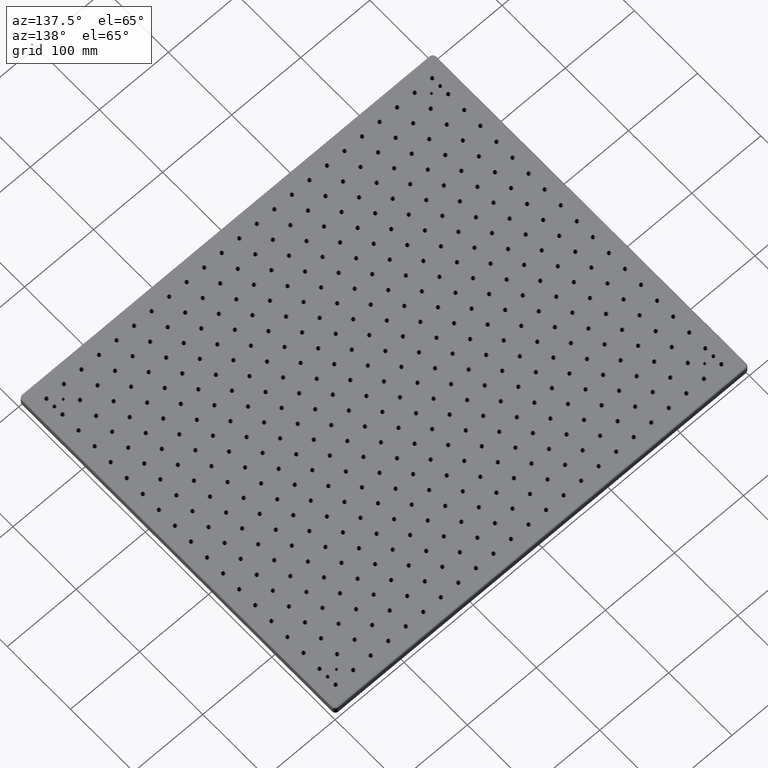
[diagram: clean part render]
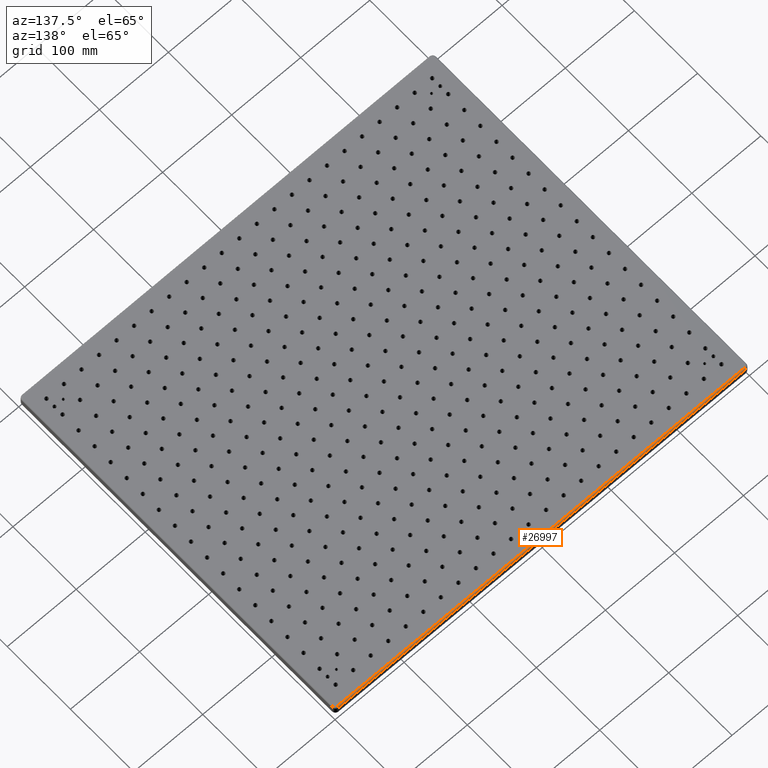
[diagram: same view with one face highlighted and labeled with its STEP entity id]
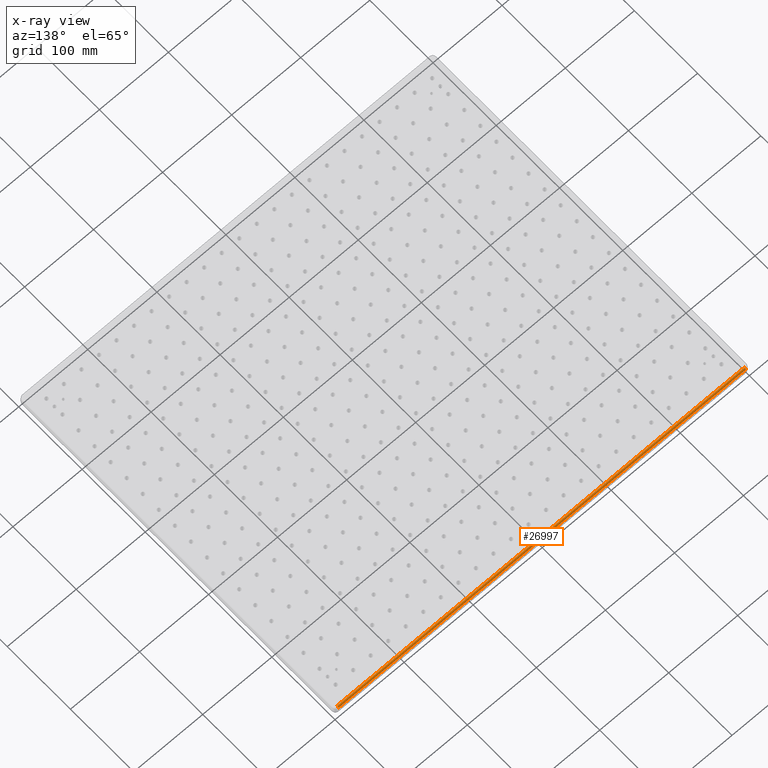
[diagram: x-ray of the same camera — body ghosted, the highlighted face saturated]
A machine part, auxiliary view. The second image highlights one B-rep face of the part: STEP entity #26997.
The next image is the same camera in x-ray: the body ghosted, the highlighted face saturated — about 0% of this face is hidden behind the body in this view.
In plain terms, the highlighted cylindrical surface (edge-blend (fillet) strip) has radius 2 mm, axis along (1, -0, 0).
Its self-contained STEP definition (entity closure, byte-faithful):
#719 = CARTESIAN_POINT ( 'NONE',  ( 595.0000000000000000, 498.0000000000000000, -2.000000000000000000 ) ) ;
#725 = CARTESIAN_POINT ( 'NONE',  ( 4.999999999999998200, 498.0000000000000000, 0.0000000000000000000 ) ) ;
#1492 = LINE ( 'NONE', #22708, #14993 ) ;
#3805 = AXIS2_PLACEMENT_3D ( 'NONE', #719, #8728, #6296 ) ;
#5752 = ORIENTED_EDGE ( 'NONE', *, *, #12382, .F. ) ;
#6296 = DIRECTION ( 'NONE',  ( 0.0000000000000000000, 0.0000000000000000000, -1.000000000000000000 ) ) ;
#6945 = CYLINDRICAL_SURFACE ( 'NONE', #32017, 2.000000000000000000 ) ;
#7563 = VECTOR ( 'NONE', #24764, 1000.000000000000000 ) ;
#8728 = DIRECTION ( 'NONE',  ( 1.000000000000000000, 0.0000000000000000000, 0.0000000000000000000 ) ) ;
#9209 = CIRCLE ( 'NONE', #26829, 2.000000000000000000 ) ;
#9283 = DIRECTION ( 'NONE',  ( 1.000000000000000000, -0.0000000000000000000, 0.0000000000000000000 ) ) ;
#10540 = DIRECTION ( 'NONE',  ( 1.000000000000000000, 0.0000000000000000000, 0.0000000000000000000 ) ) ;
#11156 = VERTEX_POINT ( 'NONE', #26441 ) ;
#11182 = ORIENTED_EDGE ( 'NONE', *, *, #14772, .F. ) ;
#12382 = EDGE_CURVE ( 'NONE', #11156, #20359, #12656, .T. ) ;
#12656 = CIRCLE ( 'NONE', #3805, 2.000000000000000000 ) ;
#13514 = CARTESIAN_POINT ( 'NONE',  ( 595.0000000000000000, 498.0000000000000000, 0.0000000000000000000 ) ) ;
#13951 = CARTESIAN_POINT ( 'NONE',  ( 4.999999999999998200, 498.0000000000000000, 0.0000000000000000000 ) ) ;
#14772 = EDGE_CURVE ( 'NONE', #20359, #22177, #24000, .T. ) ;
#14993 = VECTOR ( 'NONE', #16748, 1000.000000000000000 ) ;
#15402 = EDGE_CURVE ( 'NONE', #23111, #11156, #1492, .T. ) ;
#15703 = CARTESIAN_POINT ( 'NONE',  ( 4.999999999999998200, 498.0000000000000000, -2.000000000000000000 ) ) ;
#16748 = DIRECTION ( 'NONE',  ( 1.000000000000000000, -0.0000000000000000000, 0.0000000000000000000 ) ) ;
#18975 = ORIENTED_EDGE ( 'NONE', *, *, #15402, .F. ) ;
#20359 = VERTEX_POINT ( 'NONE', #13514 ) ;
#20368 = EDGE_LOOP ( 'NONE', ( #23114, #11182, #5752, #18975 ) ) ;
#22177 = VERTEX_POINT ( 'NONE', #13951 ) ;
#22708 = CARTESIAN_POINT ( 'NONE',  ( 595.0000000000000000, 500.0000000000000000, -2.000000000000000000 ) ) ;
#23021 = EDGE_CURVE ( 'NONE', #23111, #22177, #9209, .T. ) ;
#23111 = VERTEX_POINT ( 'NONE', #27366 ) ;
#23114 = ORIENTED_EDGE ( 'NONE', *, *, #23021, .T. ) ;
#23624 = DIRECTION ( 'NONE',  ( 0.0000000000000000000, 0.0000000000000000000, -1.000000000000000000 ) ) ;
#24000 = LINE ( 'NONE', #725, #7563 ) ;
#24589 = FACE_OUTER_BOUND ( 'NONE', #20368, .T. ) ;
#24764 = DIRECTION ( 'NONE',  ( -1.000000000000000000, 0.0000000000000000000, 0.0000000000000000000 ) ) ;
#26441 = CARTESIAN_POINT ( 'NONE',  ( 595.0000000000000000, 500.0000000000000000, -2.000000000000000000 ) ) ;
#26829 = AXIS2_PLACEMENT_3D ( 'NONE', #15703, #10540, #23624 ) ;
#26997 = ADVANCED_FACE ( 'NONE', ( #24589 ), #6945, .T. ) ;
#27266 = DIRECTION ( 'NONE',  ( 0.0000000000000000000, 0.0000000000000000000, -1.000000000000000000 ) ) ;
#27366 = CARTESIAN_POINT ( 'NONE',  ( 4.999999999999998200, 500.0000000000000000, -2.000000000000000000 ) ) ;
#29904 = CARTESIAN_POINT ( 'NONE',  ( 0.0000000000000000000, 498.0000000000000000, -2.000000000000000000 ) ) ;
#32017 = AXIS2_PLACEMENT_3D ( 'NONE', #29904, #9283, #27266 ) ;